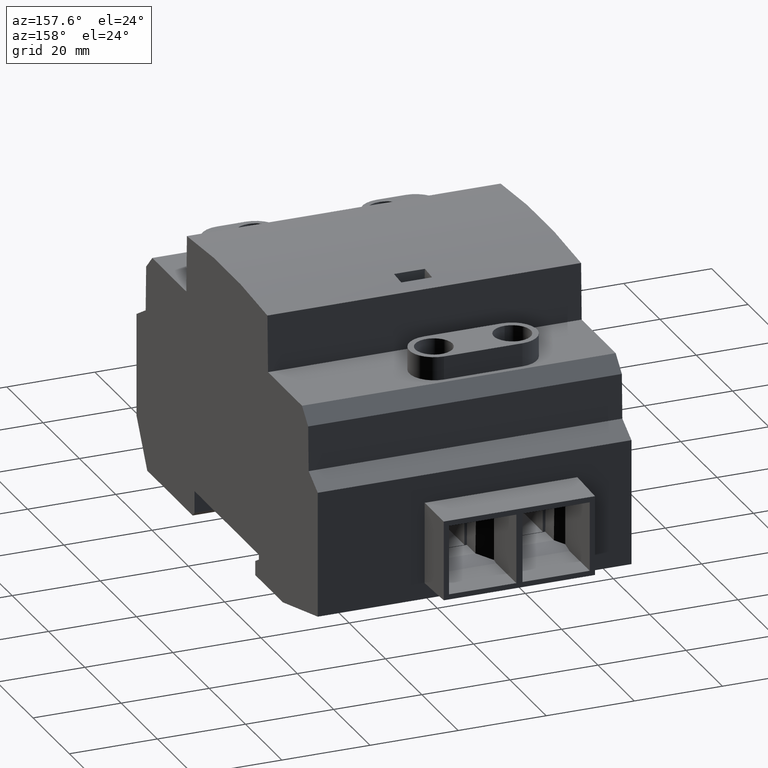
[diagram: clean part render]
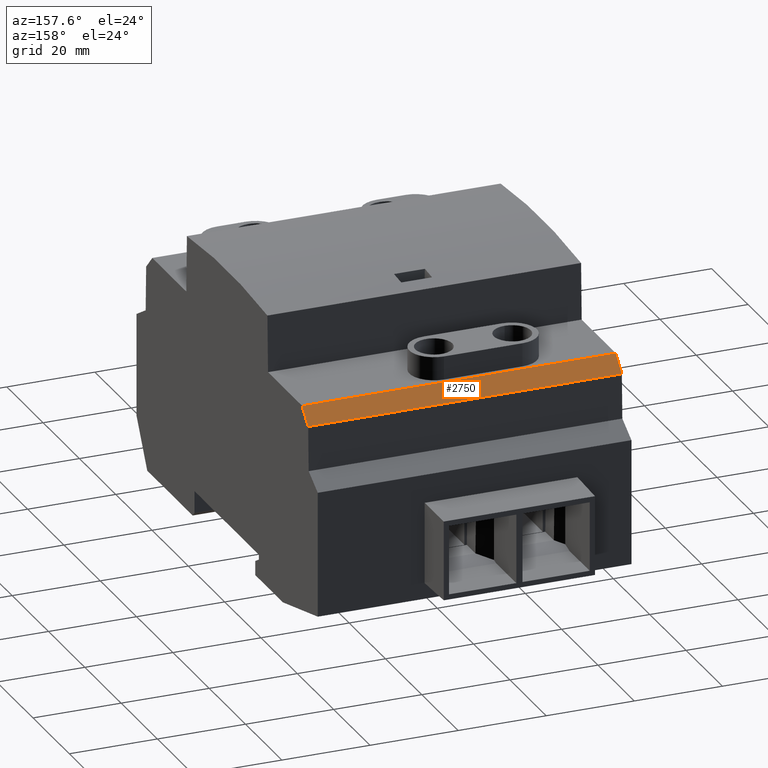
[diagram: same view with one face highlighted and labeled with its STEP entity id]
A machine part, auxiliary view. The second image highlights one B-rep face of the part: STEP entity #2750.
In plain terms, the highlighted planar face has unit normal (0, -0.7071, -0.7071).
Its self-contained STEP definition (entity closure, byte-faithful):
#2360=CARTESIAN_POINT('',(114.037590812803,214.367615731044,
8.90000000000006));
#2370=DIRECTION('',(0.707106781186586,-0.707106781186509,
8.6595605623554E-17));
#2380=DIRECTION('',(0.707106781186509,0.707106781186586,
8.65956056235446E-17));
#2390=AXIS2_PLACEMENT_3D('',#2360,#2370,#2380);
#2400=PLANE('',#2390);
#2410=CARTESIAN_POINT('',(80.7265359919043,181.056560910141,
8.90000000000006));
#2420=DIRECTION('',(0.707106781186509,0.707106781186586,
8.65956056235446E-17));
#2430=VECTOR('',#2420,1.);
#2440=LINE('',#2410,#2430);
#2450=CARTESIAN_POINT('',(110.659905722298,210.989930640539,
8.90000000000006));
#2460=VERTEX_POINT('',#2450);
#2470=CARTESIAN_POINT('',(114.037590812803,214.367615731044,
8.90000000000006));
#2480=VERTEX_POINT('',#2470);
#2490=EDGE_CURVE('',#2460,#2480,#2440,.T.);
#2500=ORIENTED_EDGE('',*,*,#2490,.F.);
#2510=CARTESIAN_POINT('',(114.037590812803,214.367615731044,19.));
#2520=DIRECTION('',(-1.22464679914735E-16,0.,1.));
#2530=VECTOR('',#2520,1.);
#2540=LINE('',#2510,#2530);
#2550=CARTESIAN_POINT('',(114.037590812803,214.367615731044,
80.1000000000065));
#2560=VERTEX_POINT('',#2550);
#2570=EDGE_CURVE('',#2480,#2560,#2540,.T.);
#2580=ORIENTED_EDGE('',*,*,#2570,.F.);
#2590=CARTESIAN_POINT('',(-100.330024918217,2.8421709430404E-14,
80.1000000000065));
#2600=DIRECTION('',(-0.707106781186509,-0.707106781186586,0.));
#2610=VECTOR('',#2600,1.);
#2620=LINE('',#2590,#2610);
#2630=CARTESIAN_POINT('',(110.659905722298,210.989930640539,
80.1000000000065));
#2640=VERTEX_POINT('',#2630);
#2650=EDGE_CURVE('',#2560,#2640,#2620,.T.);
#2660=ORIENTED_EDGE('',*,*,#2650,.F.);
#2670=CARTESIAN_POINT('',(110.659905722298,210.989930640538,19.));
#2680=DIRECTION('',(-1.22464679914735E-16,8.95319946965959E-33,1.));
#2690=VECTOR('',#2680,1.);
#2700=LINE('',#2670,#2690);
#2710=EDGE_CURVE('',#2460,#2640,#2700,.T.);
#2720=ORIENTED_EDGE('',*,*,#2710,.T.);
#2730=EDGE_LOOP('',(#2720,#2660,#2580,#2500));
#2740=FACE_OUTER_BOUND('',#2730,.T.);
#2750=ADVANCED_FACE('',(#2740),#2400,.F.);